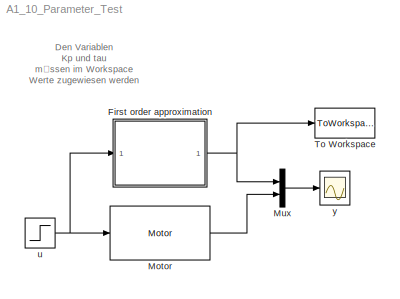
MODEL A1_10_Parameter_Test
KIND model
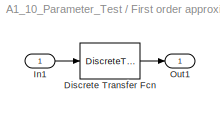
BLOCK [SubSystem] First order approximation
  FunctionWithSeparateData = off
  MaskCallbackString = ||||hidecrit|
  MaskDescription = Continuous mask uses c2d to transform parameters onto the Discrete Transfer function block inside.
  MaskDisplay = dpoly(nums,dens)\ntext( 0.5, 1.0, method, 'verticalAlignment','top')
  MaskEnableString = on,on,on,on,on,on
  MaskHideContents = off
  MaskIconFrame = on
  MaskIconOpaque = on
  MaskIconRotate = port
  MaskIconUnits = normalized
  MaskInitialization = st=SampleTime;\nif length(st)>1\n    st=SampleTime(1);\nend\nif(st>0)\n    [numd,dend] = sldiscutil('disctransferfcn',{st,method,Wc,Numerator,Denominator});\nend	\ns = get_param(gcb,'maskvalues');\nnums = s{1};\ndens = s{2};\n%numc = eval(nums);\n%denc = eval(dens);\nsldiscutil('inittfmask', st);\nif(st==0)\nset_param([gcb '/Transfer Fcn'], 'AbsoluteTolerance', AbsTol);\nend
  MaskPortRotate = default
  MaskPromptString = Numerator (enter in s-domain:)|Denominator (enter in s-domain:)|Absolute tolerance:|Sample time:|Method:|Critical Frequency (Hz):
  MaskSelfModifiable = on
  MaskStyleString = edit,edit,edit,edit,popup(zoh|foh|tustin|prewarp|matched),edit
  MaskToolTipString = on,on,on,on,on,on
  MaskTunableValueString = on,on,on,on,on,on
  MaskType = DiscretizedTransferFcn
  MaskValueString = [Kp]|[tau 1]|auto|0.01|tustin|1
  MaskVariables = Numerator=@1;Denominator=@2;AbsTol=&3;SampleTime=@4;method=&5;Wc=@6;
  MaskVisibilityString = on,on,on,on,on,off
  MinAlgLoopOccurrences = off
  Opaque = off
  Ports = [1, 1]
  PropExecContextOutsideSubsystem = off
  RTWSystemCode = Auto
  RequestExecContextInheritance = off
  SID = 14
BLOCK [DiscreteTransferFcn] First order approximation/Discrete Transfer Fcn
  Denominator = dend
  Numerator = numd
  Ports = [1, 1]
  SID = 5
  SampleTime = SampleTime
BLOCK [Inport] First order approximation/In1
  IconDisplay = Port number
  SID = 1
BLOCK [Outport] First order approximation/Out1
  IconDisplay = Port number
  SID = 3
BLOCK [Reference] Motor  REF=DCmotor_library/Motor
  Ports = [1, 1]
  SID = 1
  SourceBlock = DCmotor_library/Motor
  motoridinput = 8
  name_signal = Velocity
  ts = 10
BLOCK [Mux] Mux
  DisplayOption = bar
  Inputs = 2
  Ports = [2, 1]
  SID = 6
BLOCK [ToWorkspace] To Workspace
  MaxDataPoints = inf
  Ports = [1]
  SID = 17
  SampleTime = -1
  SaveFormat = Structure With Time
  VariableName = Data_Sim
BLOCK [Step] u
  After = 6
  SID = 2
  SampleTime = 0.01
BLOCK [Scope] y
  DataFormat = StructureWithTime
  Floating = off
  LimitDataPoints = off
  NumInputPorts = 1
  Ports = [1]
  SID = 3
  SampleTime = 0
  YMax = 140
  YMin = -10
ANNOTATION (root): Den Variablen\nKp und tau\nmüssen im Workspace \nWerte zugewiesen werden
LINE First order approximation/Discrete Transfer Fcn:1 -> First order approximation/Out1:1
LINE First order approximation/In1:1 -> First order approximation/Discrete Transfer Fcn:1
NET First order approximation:1 -> Mux:1, To Workspace:1
LINE Motor:1 -> Mux:2
LINE Mux:1 -> y:1
NET u:1 -> First order approximation:1, Motor:1
note: NET lines group one-source signal fan-out (src -> all destinations, sorted); 1:1 wires keep LINE
